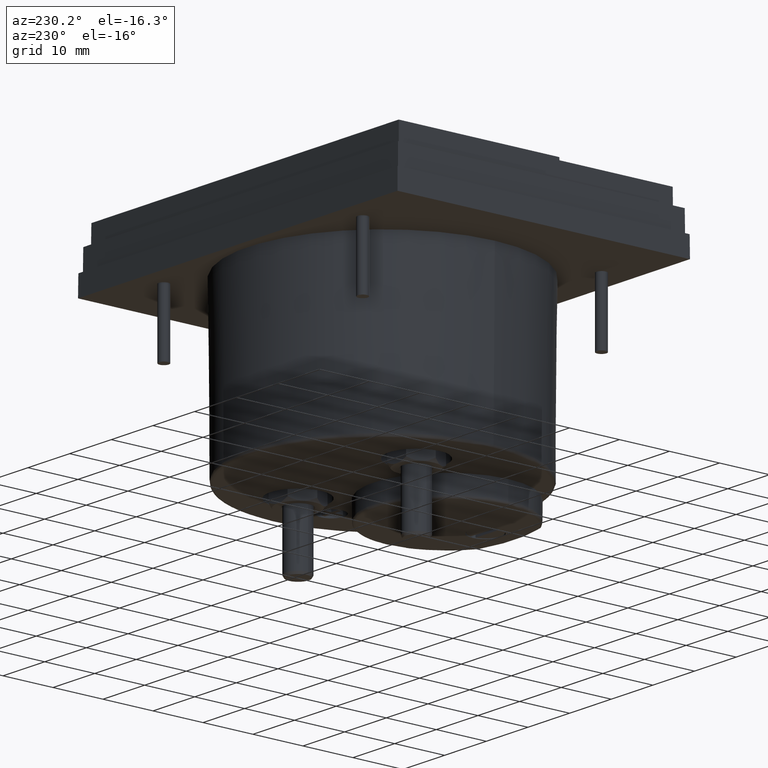
[diagram: clean part render]
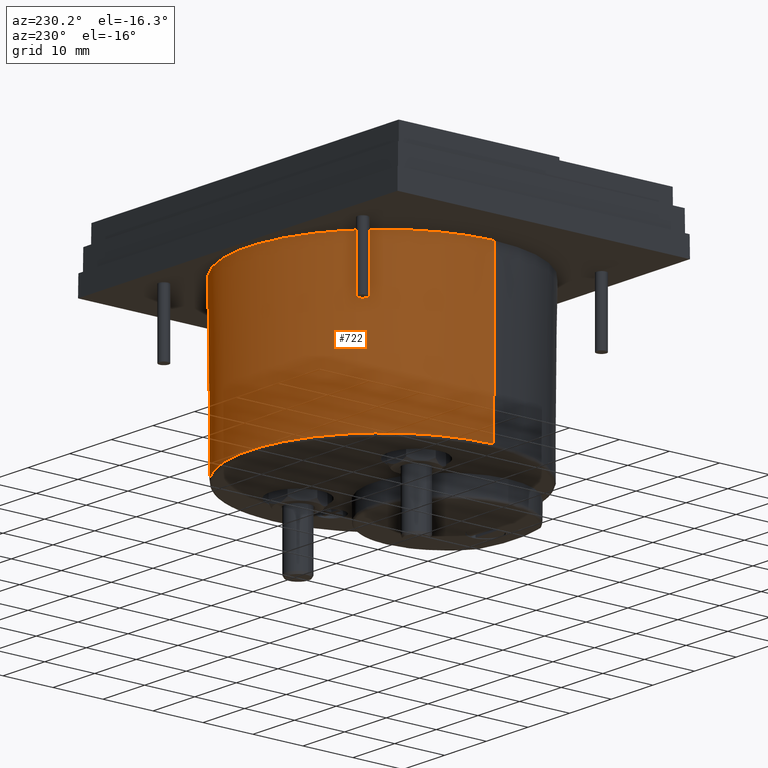
[diagram: same view with one face highlighted and labeled with its STEP entity id]
A machine part, auxiliary view. The second image highlights one B-rep face of the part: STEP entity #722.
In plain terms, the highlighted conical surface has half-angle 0.5 deg.
Its self-contained STEP definition (entity closure, byte-faithful):
#482 = CARTESIAN_POINT ( 'NONE',  ( 8.195543980992789655E-16, 0.8159055118110236648, -0.2732283464567021314 ) ) ;
#517 = AXIS2_PLACEMENT_3D ( 'NONE', #519, #947, #3810 ) ;
#519 = CARTESIAN_POINT ( 'NONE',  ( 8.195543980992789655E-16, 0.8159055118110236648, -0.2732283464567021314 ) ) ;
#555 = ORIENTED_EDGE ( 'NONE', *, *, #1452, .T. ) ;
#722 = ADVANCED_FACE ( 'NONE', ( #2883 ), #3129, .T. ) ;
#947 = DIRECTION ( 'NONE',  ( -0.000000000000000000, 0.000000000000000000, 1.000000000000000000 ) ) ;
#952 = AXIS2_PLACEMENT_3D ( 'NONE', #482, #5130, #2333 ) ;
#1157 = VERTEX_POINT ( 'NONE', #5092 ) ;
#1248 = EDGE_CURVE ( 'NONE', #2455, #2349, #5155, .T. ) ;
#1298 = ORIENTED_EDGE ( 'NONE', *, *, #1248, .T. ) ;
#1452 = EDGE_CURVE ( 'NONE', #2349, #1157, #1677, .T. ) ;
#1602 = EDGE_LOOP ( 'NONE', ( #1298, #555, #3483, #3535 ) ) ;
#1648 = CARTESIAN_POINT ( 'NONE',  ( 1.060000000000000719, 0.8159055118110236648, -0.2732283464567021314 ) ) ;
#1677 = LINE ( 'NONE', #3967, #4098 ) ;
#1710 = DIRECTION ( 'NONE',  ( -0.008726535488402603624, 1.068692375351803275E-18, 0.9999619230642582401 ) ) ;
#1977 = VERTEX_POINT ( 'NONE', #3659 ) ;
#2333 = DIRECTION ( 'NONE',  ( 1.000000000000000000, 0.000000000000000000, 0.000000000000000000 ) ) ;
#2349 = VERTEX_POINT ( 'NONE', #5247 ) ;
#2395 = VECTOR ( 'NONE', #5792, 39.37007874015748854 ) ;
#2455 = VERTEX_POINT ( 'NONE', #5890 ) ;
#2471 = CARTESIAN_POINT ( 'NONE',  ( 8.195543980992795572E-16, 0.8159055118110236648, -1.552927687706768367 ) ) ;
#2555 = AXIS2_PLACEMENT_3D ( 'NONE', #2471, #4300, #3340 ) ;
#2753 = EDGE_CURVE ( 'NONE', #2455, #1977, #4296, .T. ) ;
#2883 = FACE_OUTER_BOUND ( 'NONE', #1602, .T. ) ;
#3129 = CONICAL_SURFACE ( 'NONE', #517, 1.059999999999999831, 0.008726646249999938515 ) ;
#3340 = DIRECTION ( 'NONE',  ( -1.000000000000000000, 0.000000000000000000, -7.553504680715287121E-15 ) ) ;
#3483 = ORIENTED_EDGE ( 'NONE', *, *, #5770, .T. ) ;
#3535 = ORIENTED_EDGE ( 'NONE', *, *, #2753, .F. ) ;
#3659 = CARTESIAN_POINT ( 'NONE',  ( 1.060000000000000719, 0.8159055118110236648, -0.2732283464567021314 ) ) ;
#3810 = DIRECTION ( 'NONE',  ( 1.000000000000000000, 0.000000000000000000, 0.000000000000000000 ) ) ;
#3967 = CARTESIAN_POINT ( 'NONE',  ( -1.059999999999999165, 0.8159055118110237759, -0.2732283464567021314 ) ) ;
#4098 = VECTOR ( 'NONE', #1710, 39.37007874015748854 ) ;
#4296 = LINE ( 'NONE', #1648, #2395 ) ;
#4300 = DIRECTION ( 'NONE',  ( 0.000000000000000000, 0.000000000000000000, 1.000000000000000000 ) ) ;
#4606 = CIRCLE ( 'NONE', #952, 1.059999999999999831 ) ;
#5092 = CARTESIAN_POINT ( 'NONE',  ( -1.059999999999999165, 0.8159055118110237759, -0.2732283464567021314 ) ) ;
#5130 = DIRECTION ( 'NONE',  ( 0.000000000000000000, -0.000000000000000000, -1.000000000000000000 ) ) ;
#5155 = CIRCLE ( 'NONE', #2555, 1.048832233049751261 ) ;
#5247 = CARTESIAN_POINT ( 'NONE',  ( -1.048832233049750373, 0.8159055118110237759, -1.552927687706768367 ) ) ;
#5770 = EDGE_CURVE ( 'NONE', #1157, #1977, #4606, .T. ) ;
#5792 = DIRECTION ( 'NONE',  ( 0.008726535488402603624, 0.000000000000000000, 0.9999619230642582401 ) ) ;
#5890 = CARTESIAN_POINT ( 'NONE',  ( 1.048832233049751927, 0.8159055118110236648, -1.552927687706768367 ) ) ;